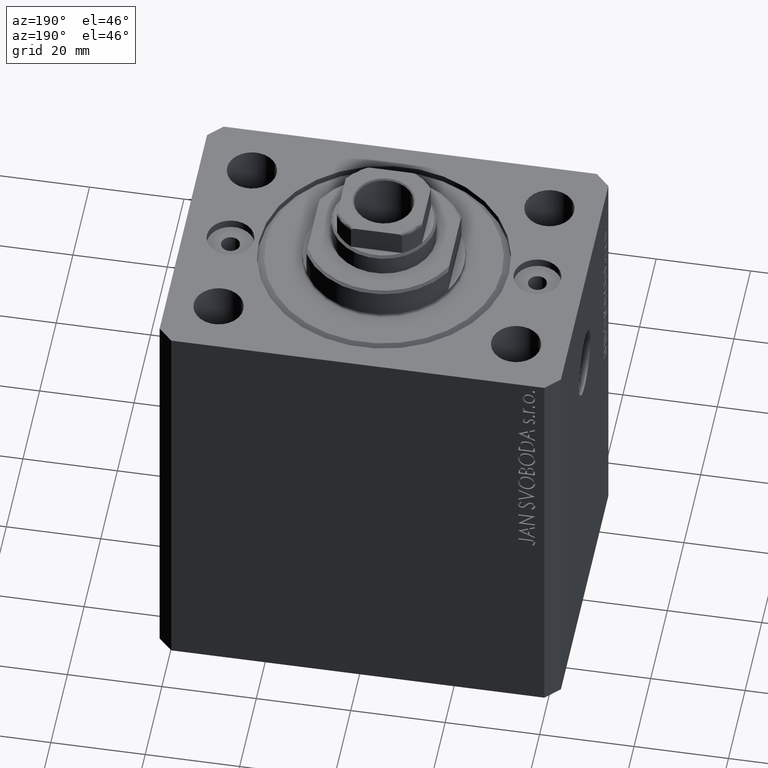
[diagram: clean part render]
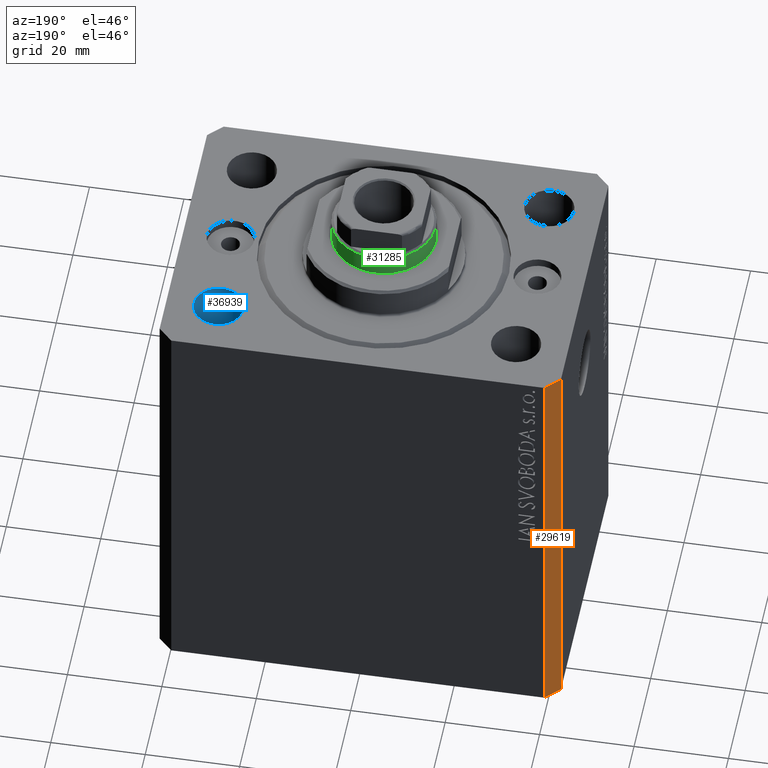
[diagram: same view with three faces highlighted in distinct colors, each labeled with its STEP entity id]
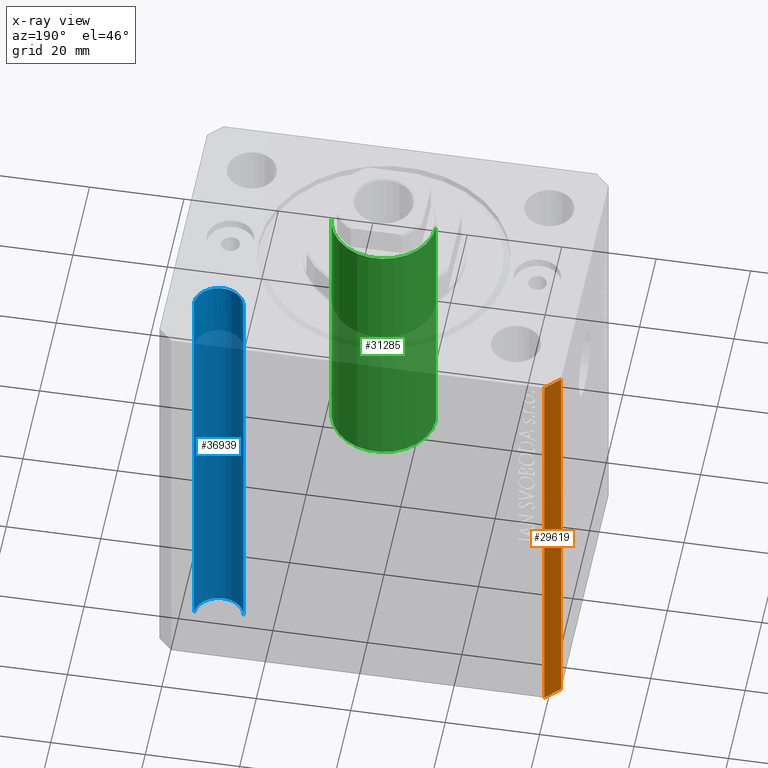
[diagram: x-ray of the same camera — body ghosted, the three highlighted faces saturated]
A machine part, auxiliary view with three faces highlighted in distinct colors.
The next image is the same camera in x-ray (body ghosted, the three faces saturated) — at least one of them is partly hidden behind the body in this view.
Their STEP definitions:

[orange] entity #29619 — the highlighted planar face has unit normal (-0.7071, 0.7071, 0).
#680 = ORIENTED_EDGE ( 'NONE', *, *, #29053, .F. ) ;
#4328 = DIRECTION ( 'NONE',  ( 0.000000000000000000, 0.000000000000000000, 1.000000000000000000 ) ) ;
#5892 = VECTOR ( 'NONE', #4328, 1000.000000000000000 ) ;
#6579 = CARTESIAN_POINT ( 'NONE',  ( -42.50000000000000000, 28.50000000000000000, -93.00000000000000000 ) ) ;
#6603 = VERTEX_POINT ( 'NONE', #29467 ) ;
#6636 = DIRECTION ( 'NONE',  ( -0.7071067811865471286, -0.7071067811865479058, 0.000000000000000000 ) ) ;
#7046 = VERTEX_POINT ( 'NONE', #23224 ) ;
#7967 = VECTOR ( 'NONE', #31131, 1000.000000000000000 ) ;
#10338 = DIRECTION ( 'NONE',  ( -0.7071067811865471286, -0.7071067811865479058, 0.000000000000000000 ) ) ;
#10582 = VERTEX_POINT ( 'NONE', #6579 ) ;
#10749 = VECTOR ( 'NONE', #30252, 1000.000000000000000 ) ;
#11109 = VECTOR ( 'NONE', #6636, 1000.000000000000000 ) ;
#12956 = CARTESIAN_POINT ( 'NONE',  ( -42.50000000000000000, 28.50000000000000000, -93.00000000000000000 ) ) ;
#13041 = FACE_OUTER_BOUND ( 'NONE', #15244, .T. ) ;
#13488 = PLANE ( 'NONE',  #15914 ) ;
#14238 = CARTESIAN_POINT ( 'NONE',  ( -39.50000000000000711, 31.50000000000000000, 0.000000000000000000 ) ) ;
#14275 = CARTESIAN_POINT ( 'NONE',  ( -39.50000000000000711, 31.50000000000000000, -93.00000000000000000 ) ) ;
#14339 = EDGE_CURVE ( 'NONE', #14756, #7046, #27051, .T. ) ;
#14756 = VERTEX_POINT ( 'NONE', #16181 ) ;
#15244 = EDGE_LOOP ( 'NONE', ( #16389, #680, #33096, #42836 ) ) ;
#15914 = AXIS2_PLACEMENT_3D ( 'NONE', #23594, #27179, #10338 ) ;
#16181 = CARTESIAN_POINT ( 'NONE',  ( -39.50000000000000711, 31.50000000000000000, 0.000000000000000000 ) ) ;
#16389 = ORIENTED_EDGE ( 'NONE', *, *, #14339, .F. ) ;
#20223 = EDGE_CURVE ( 'NONE', #10582, #7046, #39895, .T. ) ;
#20356 = LINE ( 'NONE', #14275, #7967 ) ;
#23224 = CARTESIAN_POINT ( 'NONE',  ( -42.50000000000000000, 28.50000000000000000, 0.000000000000000000 ) ) ;
#23594 = CARTESIAN_POINT ( 'NONE',  ( -39.50000000000000711, 31.50000000000000000, -93.00000000000000000 ) ) ;
#26806 = EDGE_CURVE ( 'NONE', #6603, #10582, #20356, .T. ) ;
#27051 = LINE ( 'NONE', #14238, #11109 ) ;
#27179 = DIRECTION ( 'NONE',  ( -0.7071067811865479058, 0.7071067811865471286, 0.000000000000000000 ) ) ;
#29053 = EDGE_CURVE ( 'NONE', #6603, #14756, #39322, .T. ) ;
#29467 = CARTESIAN_POINT ( 'NONE',  ( -39.50000000000000711, 31.50000000000000000, -93.00000000000000000 ) ) ;
#29619 = ADVANCED_FACE ( 'NONE', ( #13041 ), #13488, .T. ) ;
#30252 = DIRECTION ( 'NONE',  ( 0.000000000000000000, 0.000000000000000000, 1.000000000000000000 ) ) ;
#31131 = DIRECTION ( 'NONE',  ( -0.7071067811865471286, -0.7071067811865479058, 0.000000000000000000 ) ) ;
#33096 = ORIENTED_EDGE ( 'NONE', *, *, #26806, .T. ) ;
#35735 = CARTESIAN_POINT ( 'NONE',  ( -39.50000000000000711, 31.50000000000000000, -93.00000000000000000 ) ) ;
#39322 = LINE ( 'NONE', #35735, #5892 ) ;
#39895 = LINE ( 'NONE', #12956, #10749 ) ;
#42836 = ORIENTED_EDGE ( 'NONE', *, *, #20223, .T. ) ;

[blue] entity #36939 — the highlighted cylindrical surface (edge-blend (fillet) strip) has radius 5.25 mm, axis along (0, 0, 1).
#1020 = AXIS2_PLACEMENT_3D ( 'NONE', #29186, #12333, #15919 ) ;
#5555 = CARTESIAN_POINT ( 'NONE',  ( 26.25000000000000355, 19.99999999999999289, -107.8492424049175042 ) ) ;
#7531 = VECTOR ( 'NONE', #38985, 1000.000000000000000 ) ;
#8119 = ORIENTED_EDGE ( 'NONE', *, *, #18404, .T. ) ;
#9411 = CYLINDRICAL_SURFACE ( 'NONE', #1020, 5.249999999999997335 ) ;
#12333 = DIRECTION ( 'NONE',  ( -0.000000000000000000, -0.000000000000000000, 1.000000000000000000 ) ) ;
#15322 = EDGE_CURVE ( 'NONE', #20818, #38411, #39865, .T. ) ;
#15327 = CARTESIAN_POINT ( 'NONE',  ( 36.75000000000000000, 19.99999999999999289, -107.8492424049175042 ) ) ;
#15919 = DIRECTION ( 'NONE',  ( 1.000000000000000000, 0.000000000000000000, 0.000000000000000000 ) ) ;
#16033 = CARTESIAN_POINT ( 'NONE',  ( 31.50000000000000000, 19.99999999999999289, -93.00000000000000000 ) ) ;
#18404 = EDGE_CURVE ( 'NONE', #38411, #40118, #32235, .T. ) ;
#18919 = EDGE_CURVE ( 'NONE', #36944, #40118, #42234, .T. ) ;
#18987 = ORIENTED_EDGE ( 'NONE', *, *, #15322, .T. ) ;
#19393 = DIRECTION ( 'NONE',  ( -0.000000000000000000, -0.000000000000000000, -1.000000000000000000 ) ) ;
#19517 = CARTESIAN_POINT ( 'NONE',  ( 36.75000000000000000, 19.99999999999999289, 0.000000000000000000 ) ) ;
#19623 = CARTESIAN_POINT ( 'NONE',  ( 26.25000000000000355, 19.99999999999999289, 0.000000000000000000 ) ) ;
#20818 = VERTEX_POINT ( 'NONE', #30314 ) ;
#22619 = CARTESIAN_POINT ( 'NONE',  ( 31.50000000000000000, 19.99999999999999289, 0.000000000000000000 ) ) ;
#25510 = EDGE_LOOP ( 'NONE', ( #37377, #18987, #8119, #33369 ) ) ;
#29186 = CARTESIAN_POINT ( 'NONE',  ( 31.50000000000000000, 19.99999999999999289, -107.8492424049175042 ) ) ;
#29737 = DIRECTION ( 'NONE',  ( 1.000000000000000000, 0.000000000000000000, 0.000000000000000000 ) ) ;
#30314 = CARTESIAN_POINT ( 'NONE',  ( 26.25000000000000355, 19.99999999999999289, -93.00000000000000000 ) ) ;
#32235 = CIRCLE ( 'NONE', #35810, 5.249999999999997335 ) ;
#33369 = ORIENTED_EDGE ( 'NONE', *, *, #18919, .F. ) ;
#35810 = AXIS2_PLACEMENT_3D ( 'NONE', #22619, #42347, #43007 ) ;
#36939 = ADVANCED_FACE ( 'NONE', ( #39487 ), #9411, .F. ) ;
#36944 = VERTEX_POINT ( 'NONE', #40351 ) ;
#37377 = ORIENTED_EDGE ( 'NONE', *, *, #37450, .T. ) ;
#37450 = EDGE_CURVE ( 'NONE', #36944, #20818, #42615, .T. ) ;
#38411 = VERTEX_POINT ( 'NONE', #19623 ) ;
#38985 = DIRECTION ( 'NONE',  ( -0.000000000000000000, -0.000000000000000000, 1.000000000000000000 ) ) ;
#39114 = DIRECTION ( 'NONE',  ( -0.000000000000000000, -0.000000000000000000, 1.000000000000000000 ) ) ;
#39487 = FACE_OUTER_BOUND ( 'NONE', #25510, .T. ) ;
#39734 = AXIS2_PLACEMENT_3D ( 'NONE', #16033, #19393, #29737 ) ;
#39865 = LINE ( 'NONE', #5555, #7531 ) ;
#40118 = VERTEX_POINT ( 'NONE', #19517 ) ;
#40351 = CARTESIAN_POINT ( 'NONE',  ( 36.75000000000000000, 19.99999999999999289, -93.00000000000000000 ) ) ;
#42234 = LINE ( 'NONE', #15327, #43666 ) ;
#42347 = DIRECTION ( 'NONE',  ( 0.000000000000000000, 0.000000000000000000, 1.000000000000000000 ) ) ;
#42615 = CIRCLE ( 'NONE', #39734, 5.249999999999997335 ) ;
#43007 = DIRECTION ( 'NONE',  ( 1.000000000000000000, 0.000000000000000000, 0.000000000000000000 ) ) ;
#43666 = VECTOR ( 'NONE', #39114, 1000.000000000000000 ) ;

[green] entity #31285 — the highlighted cylindrical surface (partial cylindrical patch) has radius 11 mm, axis along (-0, -0, -1).
#555 = VECTOR ( 'NONE', #38775, 1000.000000000000000 ) ;
#597 = CARTESIAN_POINT ( 'NONE',  ( -11.00000000000000000, 0.000000000000000000, 34.50000000000000000 ) ) ;
#1646 = EDGE_CURVE ( 'NONE', #24238, #24259, #36205, .T. ) ;
#4013 = LINE ( 'NONE', #42119, #555 ) ;
#4201 = ORIENTED_EDGE ( 'NONE', *, *, #13797, .T. ) ;
#5704 = EDGE_CURVE ( 'NONE', #24259, #38354, #22058, .T. ) ;
#5815 = EDGE_CURVE ( 'NONE', #13902, #38354, #4013, .T. ) ;
#5836 = CARTESIAN_POINT ( 'NONE',  ( 0.000000000000000000, 0.000000000000000000, 34.50000000000000000 ) ) ;
#6485 = EDGE_LOOP ( 'NONE', ( #4201, #40722, #21488, #38183 ) ) ;
#10190 = DIRECTION ( 'NONE',  ( -0.000000000000000000, -0.000000000000000000, -1.000000000000000000 ) ) ;
#13797 = EDGE_CURVE ( 'NONE', #13902, #24238, #38303, .T. ) ;
#13902 = VERTEX_POINT ( 'NONE', #14181 ) ;
#14053 = VECTOR ( 'NONE', #39125, 1000.000000000000000 ) ;
#14181 = CARTESIAN_POINT ( 'NONE',  ( -11.00000000000000000, 0.000000000000000000, 92.49999999999998579 ) ) ;
#15941 = AXIS2_PLACEMENT_3D ( 'NONE', #33332, #10190, #23888 ) ;
#17294 = CARTESIAN_POINT ( 'NONE',  ( 11.00000000000000000, 1.347111479062088405E-15, 92.49999999999998579 ) ) ;
#17988 = DIRECTION ( 'NONE',  ( 1.000000000000000000, 0.000000000000000000, 0.000000000000000000 ) ) ;
#18927 = CARTESIAN_POINT ( 'NONE',  ( 11.00000000000000000, 1.347111479062088405E-15, 93.00000000000000000 ) ) ;
#21334 = CARTESIAN_POINT ( 'NONE',  ( 11.00000000000000000, 1.347111479062088405E-15, 34.50000000000000000 ) ) ;
#21488 = ORIENTED_EDGE ( 'NONE', *, *, #5704, .T. ) ;
#22058 = CIRCLE ( 'NONE', #44244, 11.00000000000000000 ) ;
#23888 = DIRECTION ( 'NONE',  ( -1.000000000000000000, 0.000000000000000000, 0.000000000000000000 ) ) ;
#24238 = VERTEX_POINT ( 'NONE', #17294 ) ;
#24259 = VERTEX_POINT ( 'NONE', #21334 ) ;
#27253 = CYLINDRICAL_SURFACE ( 'NONE', #15941, 11.00000000000000000 ) ;
#29005 = AXIS2_PLACEMENT_3D ( 'NONE', #41319, #35500, #17988 ) ;
#31285 = ADVANCED_FACE ( 'NONE', ( #34211 ), #27253, .T. ) ;
#33332 = CARTESIAN_POINT ( 'NONE',  ( 0.000000000000000000, 0.000000000000000000, 93.00000000000000000 ) ) ;
#34211 = FACE_OUTER_BOUND ( 'NONE', #6485, .T. ) ;
#35500 = DIRECTION ( 'NONE',  ( 0.000000000000000000, 0.000000000000000000, -1.000000000000000000 ) ) ;
#36205 = LINE ( 'NONE', #18927, #14053 ) ;
#38183 = ORIENTED_EDGE ( 'NONE', *, *, #5815, .F. ) ;
#38303 = CIRCLE ( 'NONE', #29005, 11.00000000000000000 ) ;
#38354 = VERTEX_POINT ( 'NONE', #597 ) ;
#38775 = DIRECTION ( 'NONE',  ( -0.000000000000000000, -0.000000000000000000, -1.000000000000000000 ) ) ;
#39125 = DIRECTION ( 'NONE',  ( -0.000000000000000000, -0.000000000000000000, -1.000000000000000000 ) ) ;
#39493 = DIRECTION ( 'NONE',  ( 0.000000000000000000, 0.000000000000000000, 1.000000000000000000 ) ) ;
#39929 = DIRECTION ( 'NONE',  ( 1.000000000000000000, 0.000000000000000000, 0.000000000000000000 ) ) ;
#40722 = ORIENTED_EDGE ( 'NONE', *, *, #1646, .T. ) ;
#41319 = CARTESIAN_POINT ( 'NONE',  ( 0.000000000000000000, 0.000000000000000000, 92.49999999999998579 ) ) ;
#42119 = CARTESIAN_POINT ( 'NONE',  ( -11.00000000000000000, 0.000000000000000000, 93.00000000000000000 ) ) ;
#44244 = AXIS2_PLACEMENT_3D ( 'NONE', #5836, #39493, #39929 ) ;